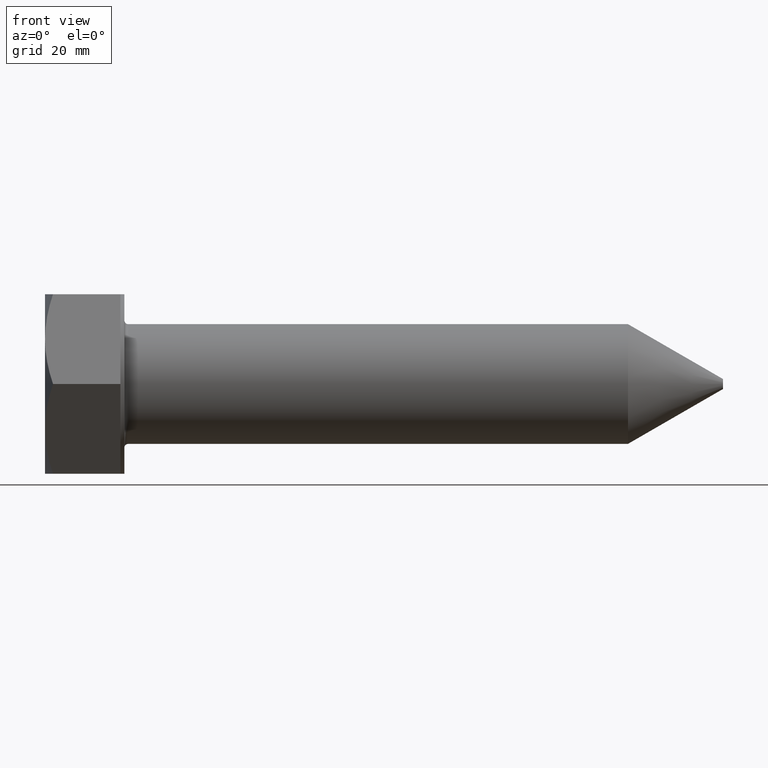
[diagram: clean part render]
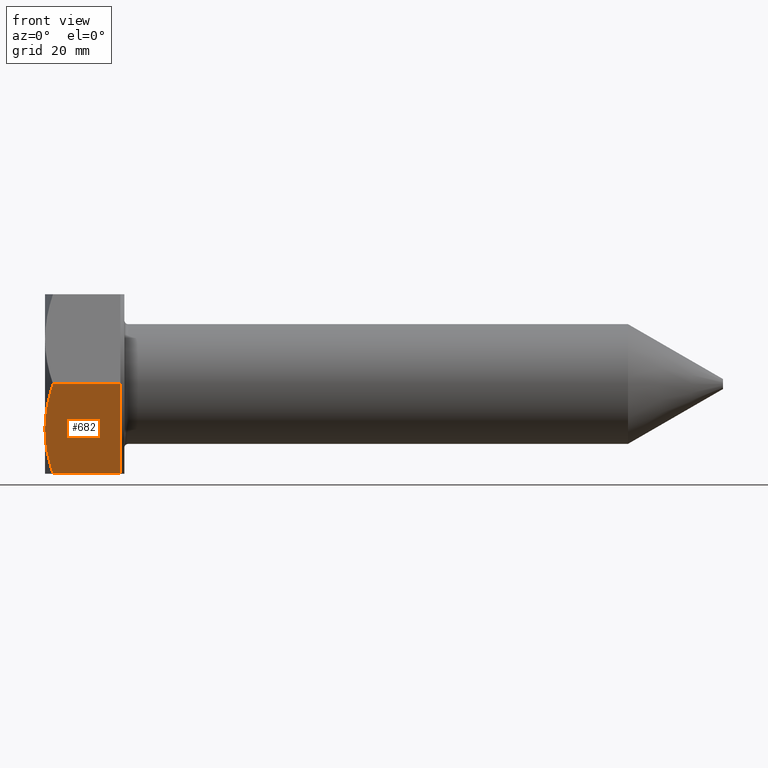
[diagram: same view with one face highlighted and labeled with its STEP entity id]
A machine part, front view. The second image highlights one B-rep face of the part: STEP entity #682.
In plain terms, the highlighted planar face has unit normal (-0, 0.866, 0.5).
Its self-contained STEP definition (entity closure, byte-faithful):
#50 = DIRECTION ( 'NONE',  ( -1.000000000000000000, -0.000000000000000000, -0.000000000000000000 ) ) ;
#92 = AXIS2_PLACEMENT_3D ( 'NONE', #470, #738, #774 ) ;
#102 = VECTOR ( 'NONE', #175, 1000.000000000000000 ) ;
#104 = VERTEX_POINT ( 'NONE', #636 ) ;
#128 = LINE ( 'NONE', #805, #649 ) ;
#141 = B_SPLINE_CURVE_WITH_KNOTS ( 'NONE', 3,
 ( #342, #328, #813, #142, #741, #610, #201, #267, #882, #474 ),
 .UNSPECIFIED., .F., .F.,
 ( 4, 2, 2, 2, 4 ),
 ( 0.01051554819734979752, 0.01182504667393344429, 0.01313454515051709279, 0.01575354210368439326, 0.02099153601001899419 ),
 .UNSPECIFIED. ) ;
#142 = CARTESIAN_POINT ( 'NONE',  ( 0.04683108270948572321, -16.47166422291242327, -7.470240680701145664 ) ) ;
#147 = DIRECTION ( 'NONE',  ( 0.000000000000000000, 0.4999999999999998335, -0.8660254037844388186 ) ) ;
#151 = LINE ( 'NONE', #763, #819 ) ;
#170 = ORIENTED_EDGE ( 'NONE', *, *, #657, .F. ) ;
#175 = DIRECTION ( 'NONE',  ( -1.000000000000000000, -0.000000000000000000, -0.000000000000000000 ) ) ;
#179 = EDGE_CURVE ( 'NONE', #500, #578, #128, .T. ) ;
#184 = CARTESIAN_POINT ( 'NONE',  ( 1.116934336526962612, -11.24232751665651264, -16.52771754582129660 ) ) ;
#197 = CARTESIAN_POINT ( 'NONE',  ( 0.1532218116813630071, -13.82892193934115888, -12.04760458715720084 ) ) ;
#199 = VERTEX_POINT ( 'NONE', #466 ) ;
#201 = CARTESIAN_POINT ( 'NONE',  ( 0.2939692054342168959, -17.78386138248275472, -5.197448530777792897 ) ) ;
#214 = VERTEX_POINT ( 'NONE', #398 ) ;
#241 = CARTESIAN_POINT ( 'NONE',  ( 15.10000000000000142, -20.78460969082653520, 0.000000000000000000 ) ) ;
#244 = EDGE_CURVE ( 'NONE', #732, #104, #723, .T. ) ;
#258 = CARTESIAN_POINT ( 'NONE',  ( 1.607695154586731512, -20.78460969082653520, -6.189267279696335278E-16 ) ) ;
#263 = PLANE ( 'NONE',  #92 ) ;
#267 = CARTESIAN_POINT ( 'NONE',  ( 0.7140392532422440430, -19.08173610902308326, -2.949463562550363349 ) ) ;
#280 = ORIENTED_EDGE ( 'NONE', *, *, #179, .T. ) ;
#293 = EDGE_LOOP ( 'NONE', ( #421, #280, #721, #773, #588, #170 ) ) ;
#301 = EDGE_CURVE ( 'NONE', #500, #199, #151, .T. ) ;
#328 = CARTESIAN_POINT ( 'NONE',  ( 6.524588913581468724E-15, -15.80894714424576541, -8.618100331995455221 ) ) ;
#342 = CARTESIAN_POINT ( 'NONE',  ( 0.000000000000000000, -15.58845726811989607, -8.999999999999996447 ) ) ;
#398 = CARTESIAN_POINT ( 'NONE',  ( 15.10000000000000142, -10.39230484541327648, -18.00000000000000000 ) ) ;
#403 = CARTESIAN_POINT ( 'NONE',  ( 0.000000000000000000, -15.58845726811989607, -8.999999999999996447 ) ) ;
#421 = ORIENTED_EDGE ( 'NONE', *, *, #301, .F. ) ;
#434 = CARTESIAN_POINT ( 'NONE',  ( 1.607695154586729291, -10.39230484541327648, -18.00000000000000000 ) ) ;
#465 = CARTESIAN_POINT ( 'NONE',  ( 15.10000000000000142, -10.39230484541327648, -18.00000000000000000 ) ) ;
#466 = CARTESIAN_POINT ( 'NONE',  ( 15.10000000000000142, -15.58845726811989429, -8.999999999999998224 ) ) ;
#470 = CARTESIAN_POINT ( 'NONE',  ( 15.90000000000000036, -10.39230484541327648, -18.00000000000000000 ) ) ;
#474 = CARTESIAN_POINT ( 'NONE',  ( 1.607695154586731512, -20.78460969082653520, -6.189267279696335278E-16 ) ) ;
#500 = VERTEX_POINT ( 'NONE', #241 ) ;
#578 = VERTEX_POINT ( 'NONE', #258 ) ;
#588 = ORIENTED_EDGE ( 'NONE', *, *, #841, .F. ) ;
#601 = EDGE_CURVE ( 'NONE', #104, #578, #141, .T. ) ;
#604 = FACE_OUTER_BOUND ( 'NONE', #293, .T. ) ;
#610 = CARTESIAN_POINT ( 'NONE',  ( 0.1850551574587588344, -17.34865996334630012, -5.951239500248216352 ) ) ;
#611 = CARTESIAN_POINT ( 'NONE',  ( 1.607695154586729291, -10.39230484541327648, -18.00000000000000000 ) ) ;
#636 = CARTESIAN_POINT ( 'NONE',  ( 0.000000000000000000, -15.58845726811989607, -8.999999999999996447 ) ) ;
#646 = LINE ( 'NONE', #708, #102 ) ;
#649 = VECTOR ( 'NONE', #50, 1000.000000000000000 ) ;
#657 = EDGE_CURVE ( 'NONE', #199, #214, #891, .T. ) ;
#682 = ADVANCED_FACE ( 'NONE', ( #604 ), #263, .F. ) ;
#708 = CARTESIAN_POINT ( 'NONE',  ( 15.90000000000000036, -10.39230484541327648, -18.00000000000000000 ) ) ;
#721 = ORIENTED_EDGE ( 'NONE', *, *, #601, .F. ) ;
#723 = B_SPLINE_CURVE_WITH_KNOTS ( 'NONE', 3,
 ( #611, #184, #809, #197, #869, #403 ),
 .UNSPECIFIED., .F., .F.,
 ( 4, 2, 4 ),
 ( 2.380728322777067826E-07, 0.005257893135091037777, 0.01051554819734979752 ),
 .UNSPECIFIED. ) ;
#732 = VERTEX_POINT ( 'NONE', #434 ) ;
#733 = DIRECTION ( 'NONE',  ( 0.000000000000000000, 0.4999999999999998335, -0.8660254037844388186 ) ) ;
#738 = DIRECTION ( 'NONE',  ( -0.000000000000000000, 0.8660254037844388186, 0.4999999999999998335 ) ) ;
#741 = CARTESIAN_POINT ( 'NONE',  ( 0.07476367467995079230, -16.69146171830285041, -7.089540251308573460 ) ) ;
#763 = CARTESIAN_POINT ( 'NONE',  ( 15.10000000000000142, -10.39230484541327648, -18.00000000000000000 ) ) ;
#766 = VECTOR ( 'NONE', #733, 999.9999999999998863 ) ;
#773 = ORIENTED_EDGE ( 'NONE', *, *, #244, .F. ) ;
#774 = DIRECTION ( 'NONE',  ( 0.000000000000000000, -0.4999999999999997780, 0.8660254037844387076 ) ) ;
#805 = CARTESIAN_POINT ( 'NONE',  ( 15.90000000000000036, -20.78460969082653520, 0.000000000000000000 ) ) ;
#809 = CARTESIAN_POINT ( 'NONE',  ( 0.7126204852947310986, -12.09855896486655524, -15.04468117448322140 ) ) ;
#813 = CARTESIAN_POINT ( 'NONE',  ( 0.009429105422164300171, -16.03054008682957132, -8.234290096841601070 ) ) ;
#819 = VECTOR ( 'NONE', #147, 999.9999999999998863 ) ;
#841 = EDGE_CURVE ( 'NONE', #214, #732, #646, .T. ) ;
#869 = CARTESIAN_POINT ( 'NONE',  ( 6.451002926288751382E-15, -14.70318727039200724, -10.53333261448110392 ) ) ;
#882 = CARTESIAN_POINT ( 'NONE',  ( 1.118160017449575161, -19.93670996121495875, -1.468605411411166184 ) ) ;
#891 = LINE ( 'NONE', #465, #766 ) ;